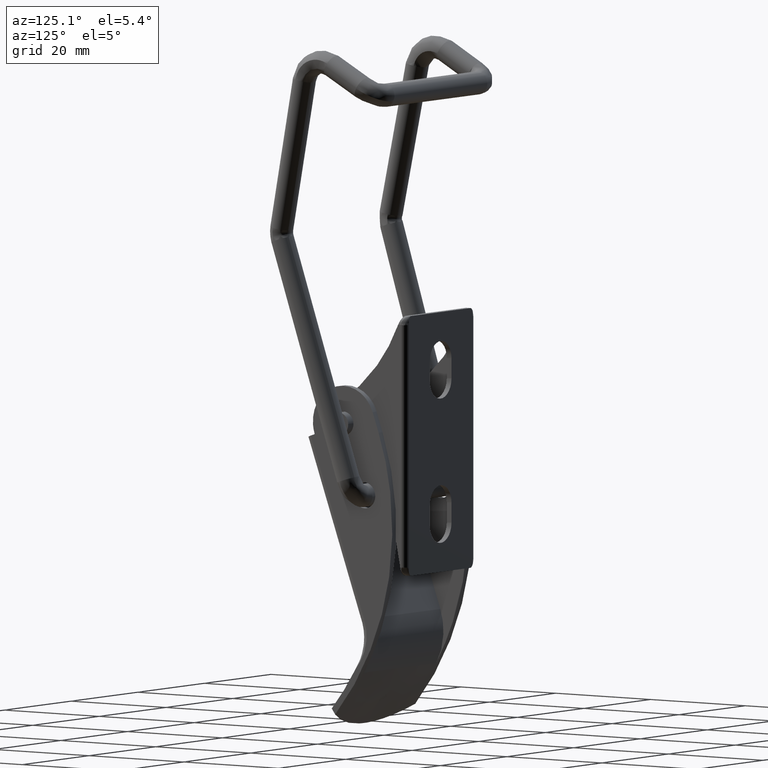
[diagram: clean part render]
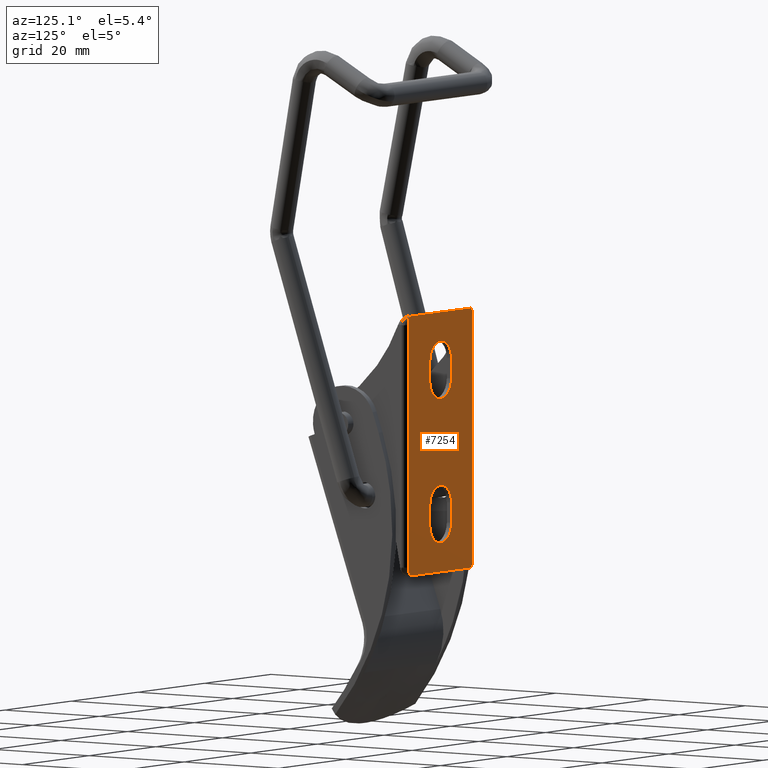
[diagram: same view with one face highlighted and labeled with its STEP entity id]
A machine part, auxiliary view. The second image highlights one B-rep face of the part: STEP entity #7254.
In plain terms, the highlighted face is a freeform B-spline surface patch.
Its self-contained STEP definition (entity closure, byte-faithful):
#5351=CARTESIAN_POINT('',(-3.249999999999885,12.000617270611199,10.750000000000000));
#5352=VERTEX_POINT('',#5351);
#5365=CARTESIAN_POINT('',(-3.250000000000000,12.000617270611199,7.250000000000091));
#5366=VERTEX_POINT('',#5365);
#5372=CARTESIAN_POINT('',(-3.250000000000000,12.000617270611199,7.250000000000091));
#5373=CARTESIAN_POINT('',(-3.249999999999885,12.000617270611199,10.750000000000000));
#5374=QUASI_UNIFORM_CURVE('',1,(#5372,#5373),.UNSPECIFIED.,.F.,.U.);
#5375=EDGE_CURVE('',#5366,#5352,#5374,.T.);
#5394=CARTESIAN_POINT('',(3.250000000000115,12.000617270611199,-14.250000000000000));
#5395=VERTEX_POINT('',#5394);
#5401=CARTESIAN_POINT('',(3.250000000000115,12.000617270611199,-17.750000000000000));
#5402=VERTEX_POINT('',#5401);
#5403=CARTESIAN_POINT('',(3.250000000000115,12.000617270611199,-17.750000000000000));
#5404=CARTESIAN_POINT('',(3.250000000000115,12.000617270611199,-14.250000000000000));
#5405=QUASI_UNIFORM_CURVE('',1,(#5403,#5404),.UNSPECIFIED.,.F.,.U.);
#5406=EDGE_CURVE('',#5402,#5395,#5405,.T.);
#5422=CARTESIAN_POINT('',(-9.0,12.000617270611199,-26.0));
#5423=VERTEX_POINT('',#5422);
#5429=CARTESIAN_POINT('',(9.0,12.000617270611199,-26.0));
#5430=VERTEX_POINT('',#5429);
#5431=CARTESIAN_POINT('',(-9.0,12.000617270611199,-26.0));
#5432=CARTESIAN_POINT('',(9.0,12.000617270611199,-26.0));
#5433=QUASI_UNIFORM_CURVE('',1,(#5431,#5432),.UNSPECIFIED.,.F.,.U.);
#5434=EDGE_CURVE('',#5423,#5430,#5433,.T.);
#5483=CARTESIAN_POINT('',(-3.250000000000000,12.000617270611199,-14.250000000000000));
#5484=VERTEX_POINT('',#5483);
#5490=CARTESIAN_POINT('',(3.250000000000115,12.000617270611199,-14.250000000000000));
#5491=CARTESIAN_POINT('',(3.250467930407229,12.000617270611221,-13.824519003556279));
#5492=CARTESIAN_POINT('',(3.106938970932302,12.000617270611141,-13.106980315608361));
#5493=CARTESIAN_POINT('',(2.633957594678505,12.000617270611270,-12.295647301168920));
#5494=CARTESIAN_POINT('',(2.062826205657805,12.000617270611160,-11.695733206094239));
#5495=CARTESIAN_POINT('',(1.427044425230106,12.000617270611199,-11.293033420891820));
#5496=CARTESIAN_POINT('',(0.767330329657268,12.000617270611210,-11.075310847357731));
#5497=CARTESIAN_POINT('',(0.187182520137583,12.000617270611230,-10.989233417535999));
#5498=CARTESIAN_POINT('',(-0.400376778111035,12.000617270611199,-11.003641467302851));
#5499=CARTESIAN_POINT('',(-1.052070719966129,12.000617270611089,-11.149957630982231));
#5500=CARTESIAN_POINT('',(-1.660128576427274,12.000617270611530,-11.428470807391090));
#5501=CARTESIAN_POINT('',(-2.218113506409943,12.000617270610970,-11.842285078739510));
#5502=CARTESIAN_POINT('',(-2.661140434134548,12.000617270611411,-12.343317091580380));
#5503=CARTESIAN_POINT('',(-2.964005203411133,12.000617270611020,-12.878021466511280));
#5504=CARTESIAN_POINT('',(-3.188544366754273,12.000617270611290,-13.505586215965531));
#5505=CARTESIAN_POINT('',(-3.250108441838303,12.000617270611160,-13.957526114037380));
#5506=CARTESIAN_POINT('',(-3.250000000000000,12.000617270611199,-14.250000000000000));
#5507=B_SPLINE_CURVE_WITH_KNOTS('',3,(#5490,#5491,#5492,#5493,#5494,#5495,#5496,#5497,#5498,#5499,#5500,#5501,#5502,#5503,#5504,#5505,#5506),.UNSPECIFIED.,.F.,.U.,(4,1,1,1,1,1,1,1,1,1,1,1,1,1,4),(0.000000491254497,1.276257301175276,2.153754467049706,2.791924364019221,3.749192721026950,4.387364296753317,4.865975952313105,5.503993039826858,6.142154403954675,6.860119341169704,7.498284036136551,8.216232921001588,8.854397777251997,9.333025596633878,10.210432339386260),.UNSPECIFIED.);
#5508=EDGE_CURVE('',#5395,#5484,#5507,.T.);
#5526=CARTESIAN_POINT('',(-3.249999999999885,12.000617270611199,-17.750000000000000));
#5527=VERTEX_POINT('',#5526);
#5533=CARTESIAN_POINT('',(-3.250000000000000,12.000617270611199,-14.250000000000000));
#5534=CARTESIAN_POINT('',(-3.249999999999885,12.000617270611199,-17.750000000000000));
#5535=QUASI_UNIFORM_CURVE('',1,(#5533,#5534),.UNSPECIFIED.,.F.,.U.);
#5536=EDGE_CURVE('',#5484,#5527,#5535,.T.);
#5581=CARTESIAN_POINT('',(-3.249999999999885,12.000617270611199,-17.750000000000000));
#5582=CARTESIAN_POINT('',(-3.250128252349767,12.000617270611190,-18.069068205198040));
#5583=CARTESIAN_POINT('',(-3.159227529606809,12.000617270611221,-18.680528415662270));
#5584=CARTESIAN_POINT('',(-2.812869567051857,12.000617270611210,-19.436781225993791));
#5585=CARTESIAN_POINT('',(-2.368969837510816,12.000617270611169,-20.005452977612350));
#5586=CARTESIAN_POINT('',(-1.883426717682021,12.000617270611240,-20.424303144847300));
#5587=CARTESIAN_POINT('',(-1.371972430257468,12.000617270611240,-20.714010187386261));
#5588=CARTESIAN_POINT('',(-0.819694766152837,12.000617270611221,-20.911601283775308));
#5589=CARTESIAN_POINT('',(-0.240612708338650,12.000617270611199,-21.012072894320500));
#5590=CARTESIAN_POINT('',(0.507257183871119,12.000617270611180,-20.993857763860468));
#5591=CARTESIAN_POINT('',(1.258433557540789,12.000617270611240,-20.785943889463638));
#5592=CARTESIAN_POINT('',(1.928711552453529,12.000617270611150,-20.395212105509270));
#5593=CARTESIAN_POINT('',(2.443428255799954,12.000617270611240,-19.928690288965999));
#5594=CARTESIAN_POINT('',(2.835218896730017,12.000617270611070,-19.386659826205811));
#5595=CARTESIAN_POINT('',(3.160020615601741,12.000617270611389,-18.653882917541910));
#5596=CARTESIAN_POINT('',(3.250216393251920,12.000617270611050,-18.095673283581309));
#5597=CARTESIAN_POINT('',(3.250000000000115,12.000617270611199,-17.750000000000000));
#5598=B_SPLINE_CURVE_WITH_KNOTS('',3,(#5581,#5582,#5583,#5584,#5585,#5586,#5587,#5588,#5589,#5590,#5591,#5592,#5593,#5594,#5595,#5596,#5597),.UNSPECIFIED.,.F.,.U.,(4,1,1,1,1,1,1,1,1,1,1,1,1,1,4),(0.000000491262368,0.957182798229695,1.834660959506698,2.472842044399430,3.111016770180140,3.749192721031373,4.227819676979560,4.865975952316551,5.503993039829727,6.461245835135889,7.179210967176525,7.817370155302600,8.535317743859830,9.173480646603107,10.210432339386140),.UNSPECIFIED.);
#5599=EDGE_CURVE('',#5527,#5402,#5598,.T.);
#5643=CARTESIAN_POINT('',(3.249999999999950,12.000617270611199,7.250000567232090));
#5644=VERTEX_POINT('',#5643);
#5650=CARTESIAN_POINT('',(-3.250000000000000,12.000617270611199,7.250000000000091));
#5651=CARTESIAN_POINT('',(-3.250495294558620,12.000617270611169,6.824482278354203));
#5652=CARTESIAN_POINT('',(-3.133464865066042,12.000617270611251,6.239897277641391));
#5653=CARTESIAN_POINT('',(-2.773727873487157,12.000617270611190,5.525489793156850));
#5654=CARTESIAN_POINT('',(-2.359995942961906,12.000617270611221,4.967436144896390));
#5655=CARTESIAN_POINT('',(-1.778296037322702,12.000617270611221,4.489985019445754));
#5656=CARTESIAN_POINT('',(-1.150237864023785,12.000617270611180,4.193137974397053));
#5657=CARTESIAN_POINT('',(-0.559275729318977,12.000617270611230,4.029546878671332));
#5658=CARTESIAN_POINT('',(0.027099893822549,12.000617270611190,3.979043446178686));
#5659=CARTESIAN_POINT('',(0.663711276813227,12.000617270611210,4.049680364834177));
#5660=CARTESIAN_POINT('',(1.379653242061249,12.000617270611199,4.266703524533988));
#5661=CARTESIAN_POINT('',(2.044492604799644,12.000617270611199,4.676286218834942));
#5662=CARTESIAN_POINT('',(2.523330058661883,12.000617270611199,5.179580747543634));
#5663=CARTESIAN_POINT('',(2.839843974220845,12.000617270611199,5.640857157897724));
#5664=CARTESIAN_POINT('',(3.148337357950469,12.000617270611169,6.292949023772369));
#5665=CARTESIAN_POINT('',(3.250287672699528,12.000617270611279,6.877715863587449));
#5666=CARTESIAN_POINT('',(3.249999999999950,12.000617270611199,7.250000567232090));
#5667=B_SPLINE_CURVE_WITH_KNOTS('',3,(#5650,#5651,#5652,#5653,#5654,#5655,#5656,#5657,#5658,#5659,#5660,#5661,#5662,#5663,#5664,#5665,#5666),.UNSPECIFIED.,.F.,.U.,(4,1,1,1,1,1,1,1,1,1,1,1,1,1,4),(0.000000158696793,1.276288553521237,1.754921728716727,2.393088834669730,3.350348504002700,3.988408339892529,4.467043572846696,5.184985960711275,5.743389498153804,6.381568244558032,7.418483276761290,8.056651032873029,8.455513016400964,9.093673984164573,10.210432906676751),.UNSPECIFIED.);
#5668=EDGE_CURVE('',#5366,#5644,#5667,.T.);
#5687=CARTESIAN_POINT('',(3.250000000000000,12.000617270611199,10.750000000000000));
#5688=VERTEX_POINT('',#5687);
#5694=CARTESIAN_POINT('',(3.250000000000000,12.000617270611199,10.750000000000000));
#5695=CARTESIAN_POINT('',(3.249999999999950,12.000617270611199,7.250000567232090));
#5696=QUASI_UNIFORM_CURVE('',1,(#5694,#5695),.UNSPECIFIED.,.F.,.U.);
#5697=EDGE_CURVE('',#5688,#5644,#5696,.T.);
#5741=CARTESIAN_POINT('',(3.250000000000000,12.000617270611199,10.750000000000000));
#5742=CARTESIAN_POINT('',(3.250056289606496,12.000617270611199,11.015881141980850));
#5743=CARTESIAN_POINT('',(3.181149113150005,12.000617270611210,11.574230159026451));
#5744=CARTESIAN_POINT('',(2.912173733175789,12.000617270611180,12.246888239309079));
#5745=CARTESIAN_POINT('',(2.541787444852405,12.000617270611210,12.801074828597329));
#5746=CARTESIAN_POINT('',(2.136492533499881,12.000617270611240,13.226809057878739));
#5747=CARTESIAN_POINT('',(1.612221551736757,12.000617270611150,13.596038497712890));
#5748=CARTESIAN_POINT('',(1.074831005604380,12.000617270611221,13.834218708867200));
#5749=CARTESIAN_POINT('',(0.505879188138583,12.000617270611190,13.976714479380840));
#5750=CARTESIAN_POINT('',(-0.080267238556532,12.000617270611210,14.019973696016191));
#5751=CARTESIAN_POINT('',(-0.716606482307499,12.000617270611221,13.941458185735151));
#5752=CARTESIAN_POINT('',(-1.452436004463900,12.000617270611061,13.698608532234520));
#5753=CARTESIAN_POINT('',(-2.129572880958564,12.000617270611610,13.258032561406919));
#5754=CARTESIAN_POINT('',(-2.661125713353306,12.000617270611089,12.656663073770121));
#5755=CARTESIAN_POINT('',(-2.990365531443613,12.000617270611190,12.075493838872021));
#5756=CARTESIAN_POINT('',(-3.199844902276820,12.000617270611210,11.441259999387180));
#5757=CARTESIAN_POINT('',(-3.250047893576285,12.000617270611221,10.989286369916210));
#5758=CARTESIAN_POINT('',(-3.249999999999885,12.000617270611199,10.750000000000000));
#5759=B_SPLINE_CURVE_WITH_KNOTS('',3,(#5741,#5742,#5743,#5744,#5745,#5746,#5747,#5748,#5749,#5750,#5751,#5752,#5753,#5754,#5755,#5756,#5757,#5758),.UNSPECIFIED.,.F.,.U.,(4,1,1,1,1,1,1,1,1,1,1,1,1,1,1,4),(0.000000491254626,0.797650830213193,1.675115339722412,2.153754467049729,2.791924364019198,3.430107679747375,4.068276277099205,4.546908471930474,5.184960449211992,5.823068917230374,6.461245835133639,7.498284036136340,8.216232921001369,8.854397777251819,9.492572756979307,10.210432339386200),.UNSPECIFIED.);
#5760=EDGE_CURVE('',#5688,#5352,#5759,.T.);
#6751=CARTESIAN_POINT('',(-9.0,12.000617270611199,19.0));
#6752=VERTEX_POINT('',#6751);
#6931=CARTESIAN_POINT('',(9.500000000000000,12.000617270611141,-24.500000000000000));
#6932=VERTEX_POINT('',#6931);
#6933=CARTESIAN_POINT('',(9.500000000000000,12.000617270611141,-24.500000000000000));
#6934=CARTESIAN_POINT('',(9.500561444884504,12.000617270611141,-24.513300547653301));
#6935=CARTESIAN_POINT('',(9.504443873711361,12.000617270611141,-24.537482695780810));
#6936=CARTESIAN_POINT('',(9.511505750554152,12.000617270611141,-24.572361592478352));
#6937=CARTESIAN_POINT('',(9.518776414368270,12.000617270611150,-24.611823289505899));
#6938=CARTESIAN_POINT('',(9.529223802545259,12.000617270611141,-24.657441451664329));
#6939=CARTESIAN_POINT('',(9.540325960778210,12.000617270611141,-24.709858087106841));
#6940=CARTESIAN_POINT('',(9.573007372818875,12.000617270611130,-24.857710935921428));
#6941=CARTESIAN_POINT('',(9.586756113279963,12.000617270611160,-25.046731693343190));
#6942=CARTESIAN_POINT('',(9.540784553954104,12.000617270611100,-25.311171149115701));
#6943=CARTESIAN_POINT('',(9.453159189287199,12.000617270611180,-25.527660188355679));
#6944=CARTESIAN_POINT('',(9.277449746873455,12.000617270611130,-25.787401844536252));
#6945=CARTESIAN_POINT('',(9.112818046577720,12.000617270611110,-25.928352273698160));
#6946=CARTESIAN_POINT('',(9.0,12.000617270611199,-26.0));
#6947=B_SPLINE_CURVE_WITH_KNOTS('',3,(#6933,#6934,#6935,#6936,#6937,#6938,#6939,#6940,#6941,#6942,#6943,#6944,#6945,#6946),.UNSPECIFIED.,.F.,.U.,(4,1,1,1,1,1,1,1,1,1,1,4),(-0.000093219957697,0.039791664340239,0.073249926260948,0.106708188181656,0.160166783439512,0.213625378697369,0.267396182790811,0.615074177071031,0.775543883328039,1.069736716924181,1.310508604634332,1.711726401288035),.UNSPECIFIED.);
#6948=EDGE_CURVE('',#6932,#5430,#6947,.T.);
#6976=CARTESIAN_POINT('',(9.500000000000000,12.000617270611141,17.500000000000000));
#6977=VERTEX_POINT('',#6976);
#6999=CARTESIAN_POINT('',(9.500000000000000,12.000617270611141,17.500000000000000));
#7000=CARTESIAN_POINT('',(9.500000000000000,12.000617270611141,-24.500000000000000));
#7001=QUASI_UNIFORM_CURVE('',1,(#6999,#7000),.UNSPECIFIED.,.F.,.U.);
#7002=EDGE_CURVE('',#6977,#6932,#7001,.T.);
#7033=CARTESIAN_POINT('',(9.0,12.000617270611199,19.0));
#7034=VERTEX_POINT('',#7033);
#7035=CARTESIAN_POINT('',(9.0,12.000617270611199,19.0));
#7036=CARTESIAN_POINT('',(9.097744067659802,12.000617270611180,18.937880952191598));
#7037=CARTESIAN_POINT('',(9.264578173522436,12.000617270611141,18.800519951869909));
#7038=CARTESIAN_POINT('',(9.446519473878972,12.000617270611141,18.544431691205300));
#7039=CARTESIAN_POINT('',(9.547533571280264,12.000617270611130,18.294497404915329));
#7040=CARTESIAN_POINT('',(9.586841065989932,12.000617270611160,18.028479130905001));
#7041=CARTESIAN_POINT('',(9.570423846863106,12.000617270611130,17.858390410219620));
#7042=CARTESIAN_POINT('',(9.546086004523932,12.000617270611141,17.733855017848381));
#7043=CARTESIAN_POINT('',(9.536225756235321,12.000617270611141,17.691412339776338));
#7044=CARTESIAN_POINT('',(9.524539181161753,12.000617270611141,17.634574015000720));
#7045=CARTESIAN_POINT('',(9.514871426971324,12.000617270611141,17.591629868559441));
#7046=CARTESIAN_POINT('',(9.509032351531733,12.000617270611070,17.557620941263320));
#7047=CARTESIAN_POINT('',(9.503639412011497,12.000617270611841,17.531460011539000));
#7048=CARTESIAN_POINT('',(9.501890117248234,12.000617270609130,17.515409799475520));
#7049=CARTESIAN_POINT('',(9.499936861207516,12.000617270609210,17.504446390482020));
#7050=CARTESIAN_POINT('',(9.500000000000000,12.000617270611141,17.500000000000000));
#7051=B_SPLINE_CURVE_WITH_KNOTS('',3,(#7035,#7036,#7037,#7038,#7039,#7040,#7041,#7042,#7043,#7044,#7045,#7046,#7047,#7048,#7049,#7050),.UNSPECIFIED.,.F.,.U.,(4,1,1,1,1,2,1,1,1,1,1,1,4),(-0.000792705157378,0.347056667246336,0.641432283977307,0.935733383738774,1.149762386939158,1.444063820747981,1.531157905851157,1.574704948402744,1.618251990954331,1.663254657046948,1.678255545744487,1.698400577178624,1.711659463030826),.UNSPECIFIED.);
#7052=EDGE_CURVE('',#7034,#6977,#7051,.T.);
#7101=CARTESIAN_POINT('',(-9.500000000000000,12.000617270611141,-24.500000000000000));
#7102=VERTEX_POINT('',#7101);
#7112=CARTESIAN_POINT('',(-9.0,12.000617270611199,-26.0));
#7113=CARTESIAN_POINT('',(-9.112793839585020,12.000617270611089,-25.928369450234499));
#7114=CARTESIAN_POINT('',(-9.277393977768428,12.000617270611169,-25.787295188828431));
#7115=CARTESIAN_POINT('',(-9.433077617402850,12.000617270611141,-25.557308711766328));
#7116=CARTESIAN_POINT('',(-9.521963899742866,12.000617270611119,-25.362001079395679));
#7117=CARTESIAN_POINT('',(-9.563835681193121,12.000617270611199,-25.197050866414859));
#7118=CARTESIAN_POINT('',(-9.583363111554446,12.000617270610990,-24.992637334397340));
#7119=CARTESIAN_POINT('',(-9.570441793651350,12.000617270611301,-24.858408300920960));
#7120=CARTESIAN_POINT('',(-9.546081817208229,12.000617270611100,-24.733851706952571));
#7121=CARTESIAN_POINT('',(-9.536225756235380,12.000617270611141,-24.691412339776321));
#7122=CARTESIAN_POINT('',(-9.524539181161774,12.000617270611141,-24.634574015000741));
#7123=CARTESIAN_POINT('',(-9.514871426971286,12.000617270611141,-24.591629868559451));
#7124=CARTESIAN_POINT('',(-9.509032351531808,12.000617270611180,-24.557620941263519));
#7125=CARTESIAN_POINT('',(-9.503639412010386,12.000617270610491,-24.531460011536630));
#7126=CARTESIAN_POINT('',(-9.501890117251914,12.000617270613780,-24.515409799483859));
#7127=CARTESIAN_POINT('',(-9.499936861207804,12.000617270609579,-24.504446390481661));
#7128=CARTESIAN_POINT('',(-9.500000000000000,12.000617270611141,-24.500000000000000));
#7129=B_SPLINE_CURVE_WITH_KNOTS('',3,(#7112,#7113,#7114,#7115,#7116,#7117,#7118,#7119,#7120,#7121,#7122,#7123,#7124,#7125,#7126,#7127,#7128),.UNSPECIFIED.,.F.,.U.,(4,1,1,1,1,1,2,1,1,1,1,1,1,4),(-0.000792705140937,0.400572562552779,0.641432283986547,0.828693657223817,1.042754373891837,1.149762386943690,1.444063820749927,1.531157905852307,1.574704948403503,1.618251990954698,1.663254657046926,1.678255545744332,1.698400577178273,1.711659463030365),.UNSPECIFIED.);
#7130=EDGE_CURVE('',#5423,#7102,#7129,.T.);
#7150=CARTESIAN_POINT('',(-9.500000000000000,12.000617270611141,17.500000000000000));
#7151=VERTEX_POINT('',#7150);
#7165=CARTESIAN_POINT('',(-9.500000000000000,12.000617270611141,-24.500000000000000));
#7166=CARTESIAN_POINT('',(-9.500000000000000,12.000617270611141,17.500000000000000));
#7167=QUASI_UNIFORM_CURVE('',1,(#7165,#7166),.UNSPECIFIED.,.F.,.U.);
#7168=EDGE_CURVE('',#7102,#7151,#7167,.T.);
#7202=CARTESIAN_POINT('',(-9.500000000000000,12.000617270611141,17.500000000000000));
#7203=CARTESIAN_POINT('',(-9.500561444884523,12.000617270611141,17.513300547653301));
#7204=CARTESIAN_POINT('',(-9.504443873711400,12.000617270611141,17.537482695780799));
#7205=CARTESIAN_POINT('',(-9.511505750554198,12.000617270611141,17.572361592478352));
#7206=CARTESIAN_POINT('',(-9.518776466570158,12.000617270611130,17.611823325907778));
#7207=CARTESIAN_POINT('',(-9.529223549054162,12.000617270611141,17.657441274897408));
#7208=CARTESIAN_POINT('',(-9.540325550901272,12.000617270611141,17.709857701542990));
#7209=CARTESIAN_POINT('',(-9.573012669599875,12.000617270611141,17.857716044393179));
#7210=CARTESIAN_POINT('',(-9.586752817607522,12.000617270611130,18.046727942765258));
#7211=CARTESIAN_POINT('',(-9.540785117945779,12.000617270611141,18.311171178221478));
#7212=CARTESIAN_POINT('',(-9.453159490961898,12.000617270611119,18.527664492494971));
#7213=CARTESIAN_POINT('',(-9.277448290167220,12.000617270611180,18.787391876781310));
#7214=CARTESIAN_POINT('',(-9.112821407879459,12.000617270611089,18.928360547418439));
#7215=CARTESIAN_POINT('',(-9.0,12.000617270611199,19.0));
#7216=B_SPLINE_CURVE_WITH_KNOTS('',3,(#7202,#7203,#7204,#7205,#7206,#7207,#7208,#7209,#7210,#7211,#7212,#7213,#7214,#7215),.UNSPECIFIED.,.F.,.U.,(4,1,1,1,1,1,1,1,1,1,1,4),(-0.000093219959203,0.039791664338787,0.073249926259537,0.106708188180288,0.160166783438221,0.213625378696154,0.267396182789672,0.615074177070341,0.775543883327642,1.069736716924095,1.310508604634295,1.711726401287915),.UNSPECIFIED.);
#7217=EDGE_CURVE('',#7151,#6752,#7216,.T.);
#7223=CARTESIAN_POINT('',(-10.533341653659919,12.000617270611141,21.247749912781270));
#7224=CARTESIAN_POINT('',(10.533342167390650,12.000617270611141,21.247749912781270));
#7225=CARTESIAN_POINT('',(-10.533341653659919,12.000617270611141,-28.247751119775330));
#7226=CARTESIAN_POINT('',(10.533342167390650,12.000617270611141,-28.247751119775330));
#7227=B_SPLINE_SURFACE_WITH_KNOTS('',1,1,((#7223,#7225),(#7224,#7226)),.UNSPECIFIED.,.F.,.F.,.U.,(2,2),(2,2),(0.0,21.066683821050571),(0.0,49.495501032556596),.UNSPECIFIED.);
#7228=ORIENTED_EDGE('',*,*,#5434,.F.);
#7229=ORIENTED_EDGE('',*,*,#7130,.T.);
#7230=ORIENTED_EDGE('',*,*,#7168,.T.);
#7231=ORIENTED_EDGE('',*,*,#7217,.T.);
#7232=CARTESIAN_POINT('',(9.0,12.000617270611199,19.0));
#7233=CARTESIAN_POINT('',(-9.0,12.000617270611199,19.0));
#7234=QUASI_UNIFORM_CURVE('',1,(#7232,#7233),.UNSPECIFIED.,.F.,.U.);
#7235=EDGE_CURVE('',#7034,#6752,#7234,.T.);
#7236=ORIENTED_EDGE('',*,*,#7235,.F.);
#7237=ORIENTED_EDGE('',*,*,#7052,.T.);
#7238=ORIENTED_EDGE('',*,*,#7002,.T.);
#7239=ORIENTED_EDGE('',*,*,#6948,.T.);
#7240=EDGE_LOOP('',(#7228,#7229,#7230,#7231,#7236,#7237,#7238,#7239));
#7241=FACE_OUTER_BOUND('',#7240,.T.);
#7242=ORIENTED_EDGE('',*,*,#5760,.T.);
#7243=ORIENTED_EDGE('',*,*,#5375,.F.);
#7244=ORIENTED_EDGE('',*,*,#5668,.T.);
#7245=ORIENTED_EDGE('',*,*,#5697,.F.);
#7246=EDGE_LOOP('',(#7242,#7243,#7244,#7245));
#7247=FACE_BOUND('',#7246,.T.);
#7248=ORIENTED_EDGE('',*,*,#5599,.T.);
#7249=ORIENTED_EDGE('',*,*,#5406,.T.);
#7250=ORIENTED_EDGE('',*,*,#5508,.T.);
#7251=ORIENTED_EDGE('',*,*,#5536,.T.);
#7252=EDGE_LOOP('',(#7248,#7249,#7250,#7251));
#7253=FACE_BOUND('',#7252,.T.);
#7254=ADVANCED_FACE('',(#7241,#7247,#7253),#7227,.T.);